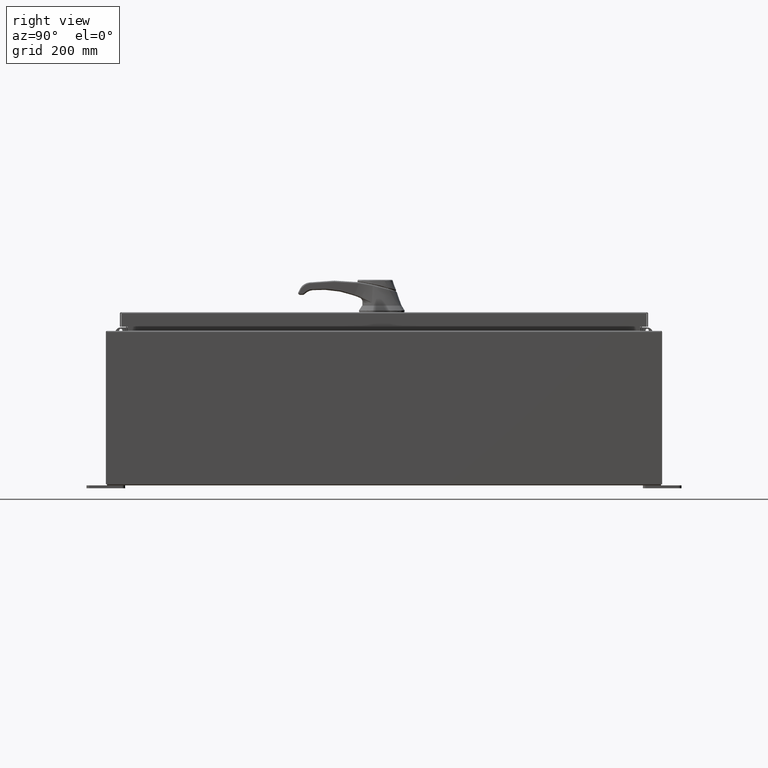
[diagram: clean part render]
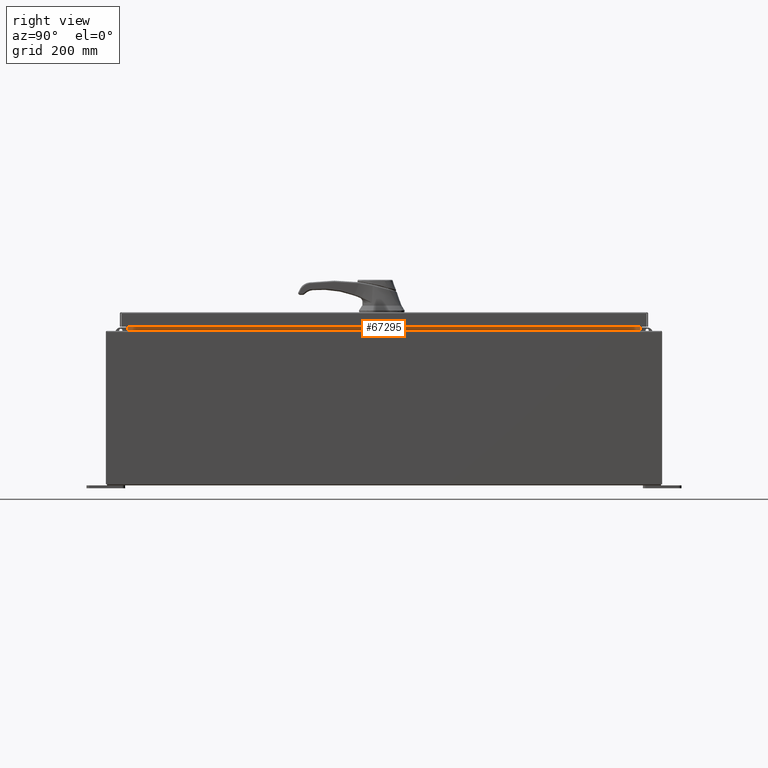
[diagram: same view with one face highlighted and labeled with its STEP entity id]
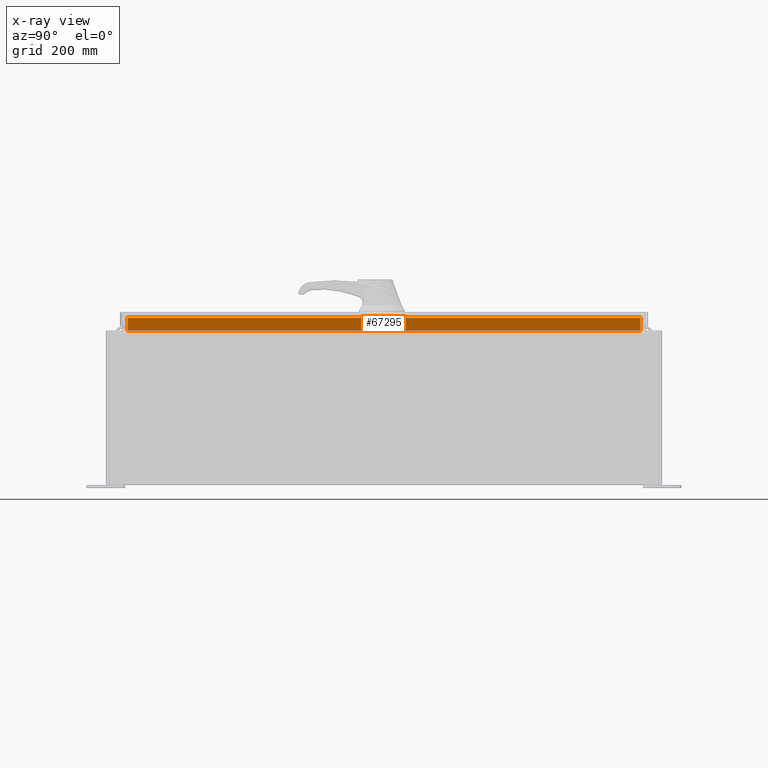
[diagram: x-ray of the same camera — body ghosted, the highlighted face saturated]
A machine part, right view. The second image highlights one B-rep face of the part: STEP entity #67295.
The next image is the same camera in x-ray: the body ghosted, the highlighted face saturated — about 0% of this face is hidden behind the body in this view.
In plain terms, the highlighted planar face has unit normal (1, -0, -0).
Its self-contained STEP definition (entity closure, byte-faithful):
#1205 = VECTOR ( 'NONE', #2789, 39.37007874015748100 ) ;
#1818 = ORIENTED_EDGE ( 'NONE', *, *, #13674, .F. ) ;
#2789 = DIRECTION ( 'NONE',  ( 0.0000000000000000000, 1.000000000000000000, 0.0000000000000000000 ) ) ;
#5353 = EDGE_CURVE ( 'NONE', #59903, #116813, #26288, .T. ) ;
#8935 = VERTEX_POINT ( 'NONE', #93606 ) ;
#9942 = CARTESIAN_POINT ( 'NONE',  ( 10.69970000000003900, -16.59375000000000000, 10.85060000000001100 ) ) ;
#13674 = EDGE_CURVE ( 'NONE', #67054, #59903, #78802, .T. ) ;
#20002 = DIRECTION ( 'NONE',  ( 1.000000000000000000, -1.555377937900767200E-031, -2.361913319930198800E-015 ) ) ;
#26288 = LINE ( 'NONE', #49272, #1205 ) ;
#31785 = VECTOR ( 'NONE', #76495, 39.37007874015748100 ) ;
#38493 = CARTESIAN_POINT ( 'NONE',  ( 10.69970000000001200, -1.664207732215685800E-030, -2.527176394925717600E-014 ) ) ;
#40866 = VECTOR ( 'NONE', #41016, 39.37007874015748100 ) ;
#41016 = DIRECTION ( 'NONE',  ( -2.361913319930198800E-015, -0.0000000000000000000, -1.000000000000000000 ) ) ;
#43812 = EDGE_CURVE ( 'NONE', #116813, #8935, #68786, .T. ) ;
#49272 = CARTESIAN_POINT ( 'NONE',  ( 10.69970000000004600, -16.59375000000000000, 10.76290000000000700 ) ) ;
#50444 = CARTESIAN_POINT ( 'NONE',  ( 10.69970000000003700, 16.59374999999999600, 9.925300000000008900 ) ) ;
#55435 = LINE ( 'NONE', #112845, #102531 ) ;
#56475 = AXIS2_PLACEMENT_3D ( 'NONE', #38493, #20002, #85725 ) ;
#56490 = DIRECTION ( 'NONE',  ( 0.0000000000000000000, -1.000000000000000000, 1.975573690333478700E-016 ) ) ;
#59903 = VERTEX_POINT ( 'NONE', #119124 ) ;
#63160 = CARTESIAN_POINT ( 'NONE',  ( 10.69970000000003700, -16.59374999999999600, 9.938300000000014100 ) ) ;
#67054 = VERTEX_POINT ( 'NONE', #63160 ) ;
#67295 = ADVANCED_FACE ( 'NONE', ( #80621 ), #113702, .T. ) ;
#68786 = LINE ( 'NONE', #50444, #40866 ) ;
#76495 = DIRECTION ( 'NONE',  ( 2.361913319930198800E-015, -0.0000000000000000000, 1.000000000000000000 ) ) ;
#78802 = LINE ( 'NONE', #9942, #31785 ) ;
#80621 = FACE_OUTER_BOUND ( 'NONE', #100429, .T. ) ;
#85725 = DIRECTION ( 'NONE',  ( -2.361913319930198800E-015, 0.0000000000000000000, -1.000000000000000000 ) ) ;
#87598 = EDGE_CURVE ( 'NONE', #8935, #67054, #55435, .T. ) ;
#93606 = CARTESIAN_POINT ( 'NONE',  ( 10.69970000000003700, 16.59374999999999600, 9.938300000000014100 ) ) ;
#94049 = ORIENTED_EDGE ( 'NONE', *, *, #87598, .F. ) ;
#100429 = EDGE_LOOP ( 'NONE', ( #110905, #109402, #1818, #94049 ) ) ;
#102531 = VECTOR ( 'NONE', #56490, 39.37007874015748100 ) ;
#103435 = CARTESIAN_POINT ( 'NONE',  ( 10.69970000000004600, 16.59374999999999600, 10.76290000000000700 ) ) ;
#109402 = ORIENTED_EDGE ( 'NONE', *, *, #5353, .F. ) ;
#110905 = ORIENTED_EDGE ( 'NONE', *, *, #43812, .F. ) ;
#112845 = CARTESIAN_POINT ( 'NONE',  ( 10.69970000000003400, 16.59374999999999600, 9.938300000000008800 ) ) ;
#113702 = PLANE ( 'NONE',  #56475 ) ;
#116813 = VERTEX_POINT ( 'NONE', #103435 ) ;
#119124 = CARTESIAN_POINT ( 'NONE',  ( 10.69970000000003900, -16.59375000000000000, 10.76290000000000700 ) ) ;